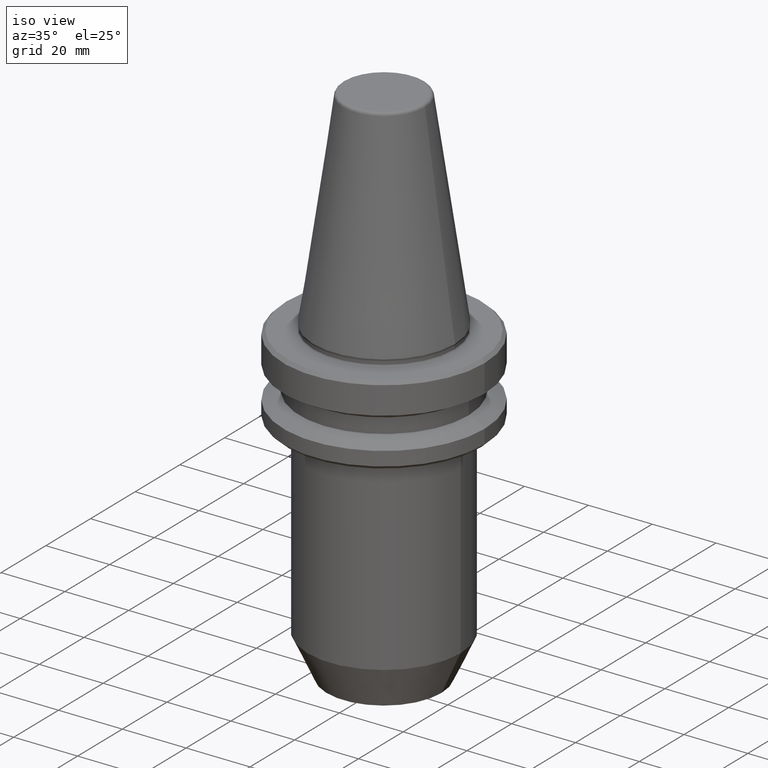
[diagram: clean part render]
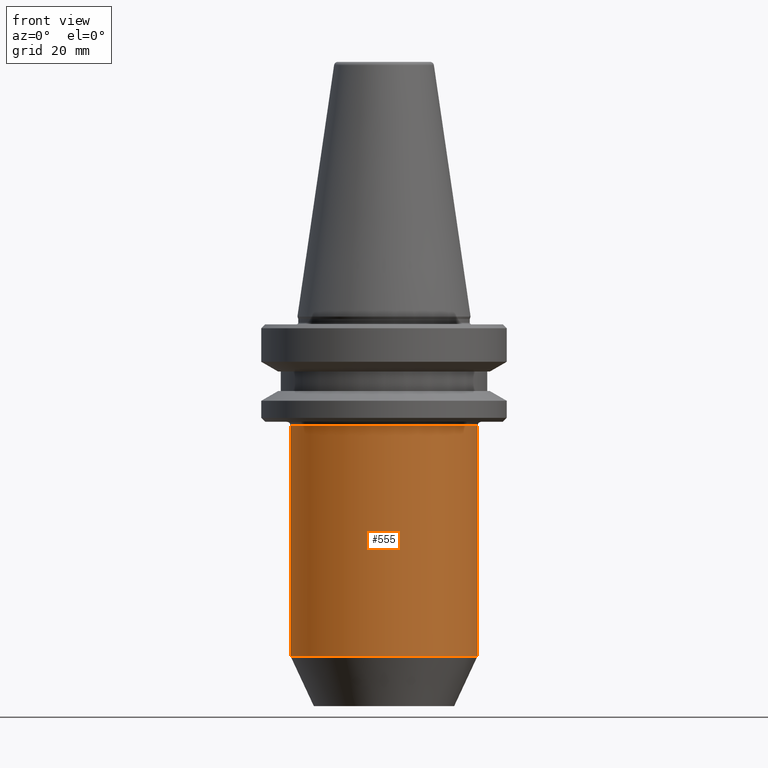
[diagram: tour spotlight — one face highlighted and labeled with its STEP entity id]
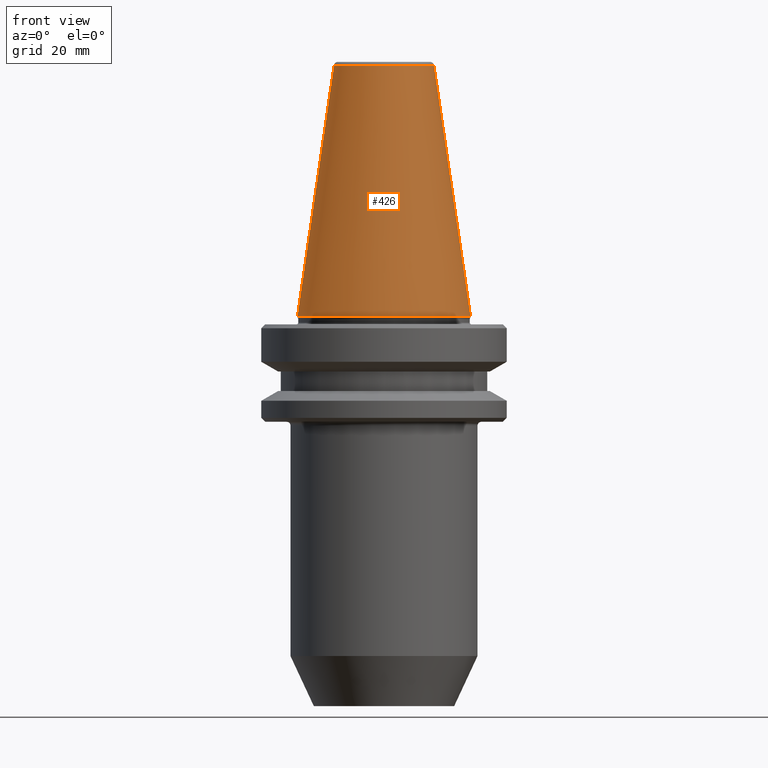
[diagram: tour spotlight — one face highlighted and labeled with its STEP entity id]
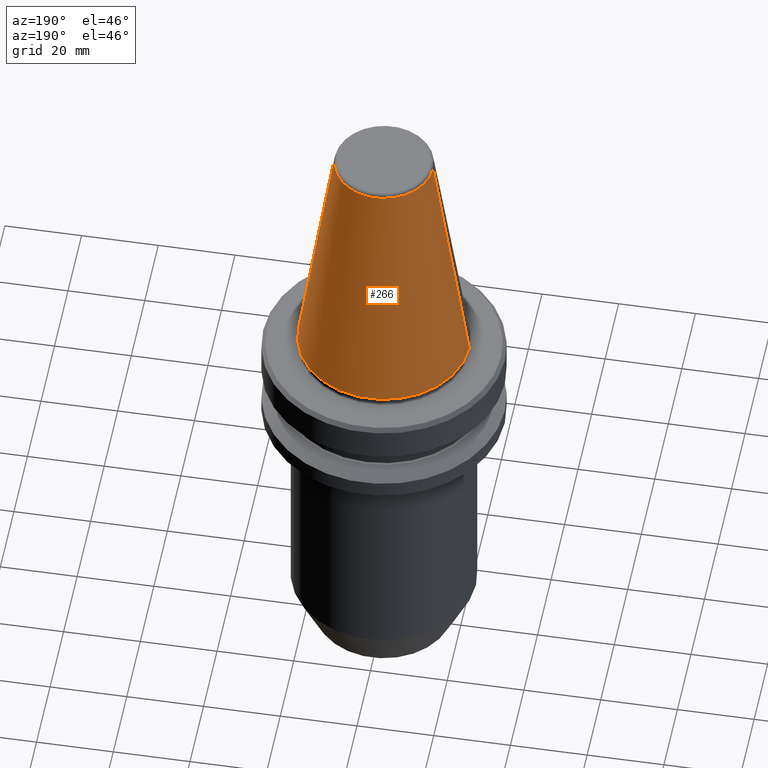
[diagram: tour spotlight — one face highlighted and labeled with its STEP entity id]
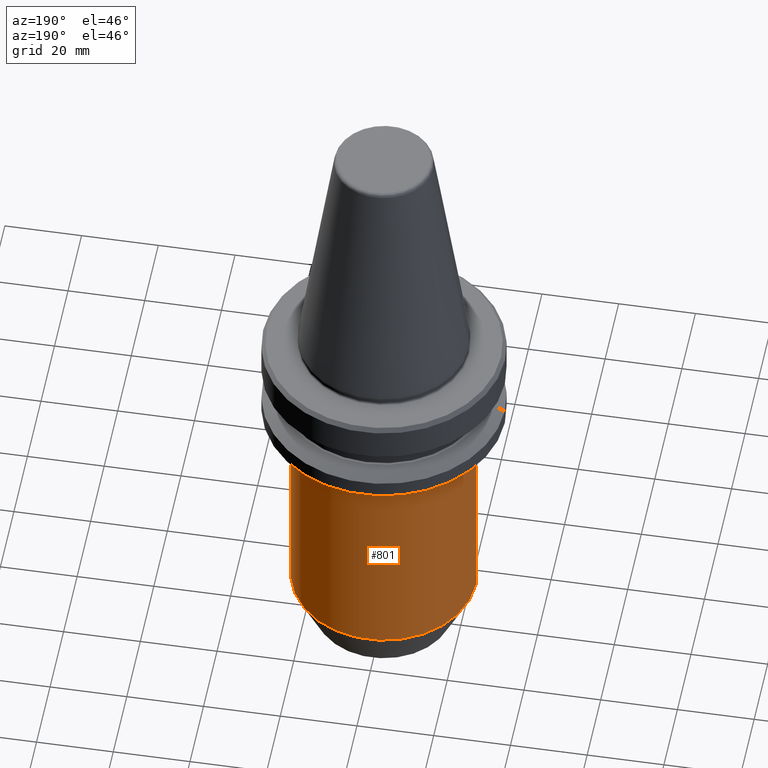
[diagram: tour spotlight — one face highlighted and labeled with its STEP entity id]
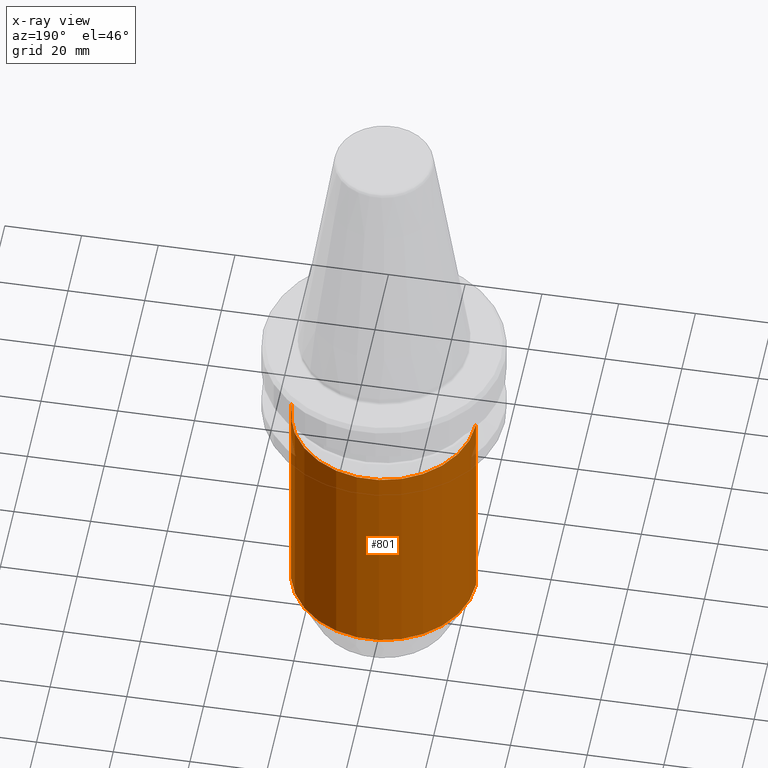
[diagram: x-ray of the same camera — body ghosted, this tour face saturated]
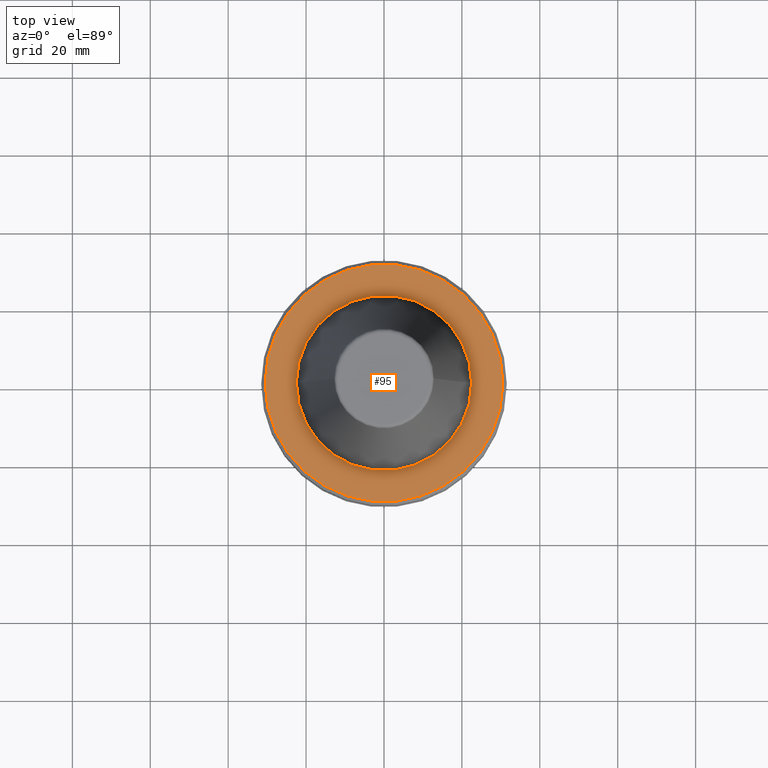
[diagram: tour spotlight — one face highlighted and labeled with its STEP entity id]
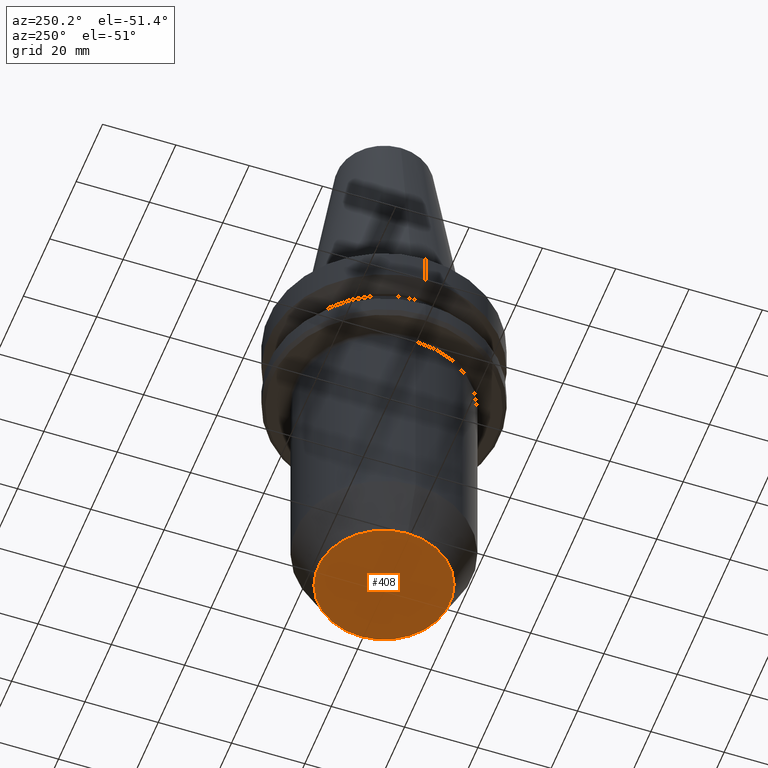
[diagram: tour spotlight — one face highlighted and labeled with its STEP entity id]
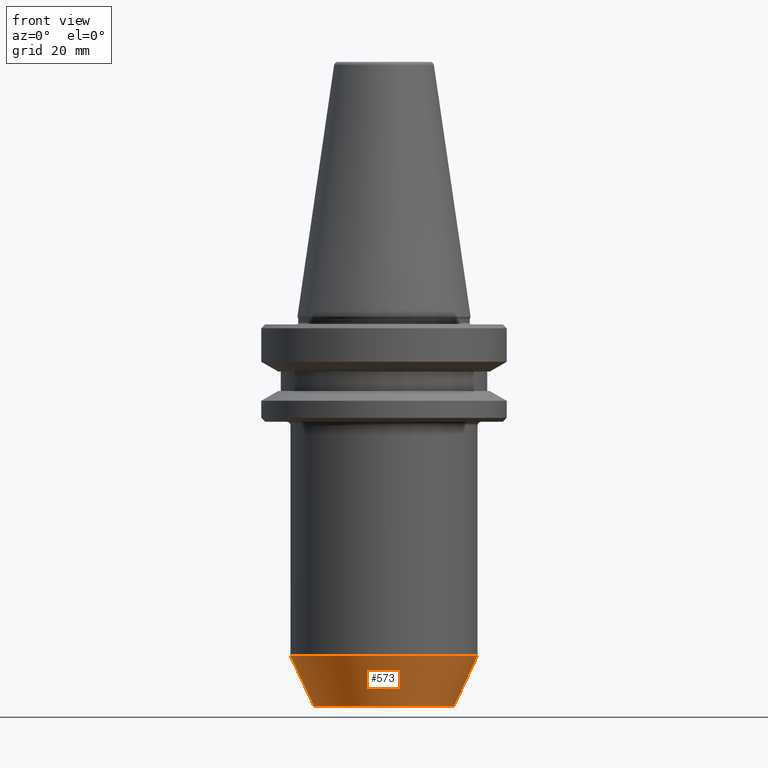
[diagram: tour spotlight — one face highlighted and labeled with its STEP entity id]
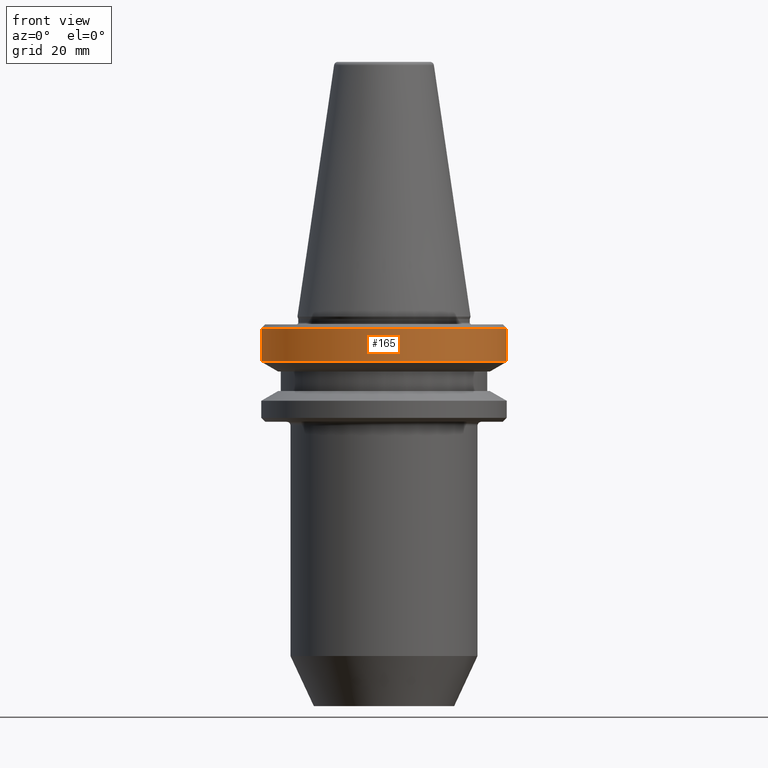
[diagram: tour spotlight — one face highlighted and labeled with its STEP entity id]
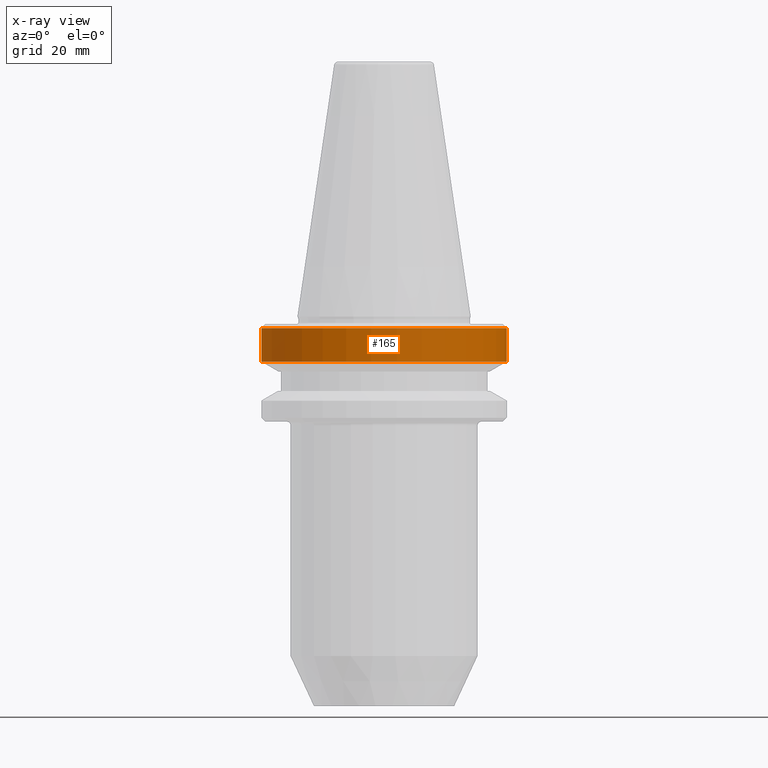
[diagram: x-ray of the same camera — body ghosted, this tour face saturated]
A machine part: a face-by-face anatomy tour. The part has 38 B-rep faces; the first image is the clean iso view, then the 8 largest visible faces are spotlighted one at a time (largest first), each with its STEP entity span.

Face 1 — front view, entity #555. In plain terms, the highlighted cylindrical surface (partial cylindrical patch) has radius 24 mm, axis along (-0, -0, 1).
Definition (entity closure, byte-faithful):
#56 = CIRCLE ( 'NONE', #354, 24.00000000000000000 ) ;
#77 = DIRECTION ( 'NONE',  ( -0.0000000000000000000, -0.0000000000000000000, 1.000000000000000000 ) ) ;
#137 = DIRECTION ( 'NONE',  ( 1.000000000000000000, 0.0000000000000000000, 0.0000000000000000000 ) ) ;
#147 = CARTESIAN_POINT ( 'NONE',  ( 0.0000000000000000000, 0.0000000000000000000, -27.31128678844368800 ) ) ;
#149 = DIRECTION ( 'NONE',  ( 1.000000000000000000, 0.0000000000000000000, 0.0000000000000000000 ) ) ;
#167 = CARTESIAN_POINT ( 'NONE',  ( 0.0000000000000000000, 0.0000000000000000000, -86.44424526528280200 ) ) ;
#168 = CARTESIAN_POINT ( 'NONE',  ( -24.00000000000000000, 2.939152317953647900E-015, -86.44424526528280200 ) ) ;
#171 = DIRECTION ( 'NONE',  ( -0.0000000000000000000, -0.0000000000000000000, 1.000000000000000000 ) ) ;
#194 = DIRECTION ( 'NONE',  ( -0.0000000000000000000, -0.0000000000000000000, 1.000000000000000000 ) ) ;
#213 = EDGE_CURVE ( 'NONE', #914, #503, #848, .T. ) ;
#229 = LINE ( 'NONE', #404, #1044 ) ;
#262 = AXIS2_PLACEMENT_3D ( 'NONE', #584, #1026, #149 ) ;
#296 = ORIENTED_EDGE ( 'NONE', *, *, #213, .F. ) ;
#332 = DIRECTION ( 'NONE',  ( -0.0000000000000000000, -0.0000000000000000000, 1.000000000000000000 ) ) ;
#334 = CARTESIAN_POINT ( 'NONE',  ( 24.00000000000000000, 0.0000000000000000000, 82.74845858742440900 ) ) ;
#354 = AXIS2_PLACEMENT_3D ( 'NONE', #167, #77, #137 ) ;
#357 = CARTESIAN_POINT ( 'NONE',  ( 24.00000000000000000, 0.0000000000000000000, -86.44424526528280200 ) ) ;
#392 = FACE_OUTER_BOUND ( 'NONE', #867, .T. ) ;
#404 = CARTESIAN_POINT ( 'NONE',  ( -24.00000000000000000, 2.939152317953647900E-015, 82.74845858742440900 ) ) ;
#407 = AXIS2_PLACEMENT_3D ( 'NONE', #147, #332, #415 ) ;
#415 = DIRECTION ( 'NONE',  ( 1.000000000000000000, 0.0000000000000000000, 0.0000000000000000000 ) ) ;
#456 = EDGE_CURVE ( 'NONE', #743, #950, #56, .T. ) ;
#482 = VECTOR ( 'NONE', #194, 1000.000000000000000 ) ;
#503 = VERTEX_POINT ( 'NONE', #913 ) ;
#511 = ORIENTED_EDGE ( 'NONE', *, *, #1016, .F. ) ;
#555 = ADVANCED_FACE ( 'NONE', ( #392 ), #753, .T. ) ;
#584 = CARTESIAN_POINT ( 'NONE',  ( 0.0000000000000000000, 0.0000000000000000000, 82.74845858742440900 ) ) ;
#608 = ORIENTED_EDGE ( 'NONE', *, *, #655, .T. ) ;
#655 = EDGE_CURVE ( 'NONE', #950, #503, #901, .T. ) ;
#743 = VERTEX_POINT ( 'NONE', #168 ) ;
#753 = CYLINDRICAL_SURFACE ( 'NONE', #262, 24.00000000000000000 ) ;
#848 = CIRCLE ( 'NONE', #407, 24.00000000000000000 ) ;
#867 = EDGE_LOOP ( 'NONE', ( #511, #999, #608, #296 ) ) ;
#901 = LINE ( 'NONE', #334, #482 ) ;
#913 = CARTESIAN_POINT ( 'NONE',  ( 24.00000000000000000, 0.0000000000000000000, -27.31128678844368800 ) ) ;
#914 = VERTEX_POINT ( 'NONE', #1027 ) ;
#950 = VERTEX_POINT ( 'NONE', #357 ) ;
#999 = ORIENTED_EDGE ( 'NONE', *, *, #456, .T. ) ;
#1016 = EDGE_CURVE ( 'NONE', #743, #914, #229, .T. ) ;
#1026 = DIRECTION ( 'NONE',  ( -0.0000000000000000000, -0.0000000000000000000, 1.000000000000000000 ) ) ;
#1027 = CARTESIAN_POINT ( 'NONE',  ( -24.00000000000000000, 2.939152317953647900E-015, -27.31128678844368800 ) ) ;
#1044 = VECTOR ( 'NONE', #171, 1000.000000000000000 ) ;

Face 2 — front view, entity #426. In plain terms, the highlighted conical surface has half-angle 8.297 deg.
Definition (entity closure, byte-faithful):
#96 = CARTESIAN_POINT ( 'NONE',  ( 22.22499999999971700, 0.0000000000000000000, 0.6887132116596417200 ) ) ;
#156 = AXIS2_PLACEMENT_3D ( 'NONE', #685, #479, #302 ) ;
#170 = CIRCLE ( 'NONE', #156, 12.81220206925715000 ) ;
#234 = CARTESIAN_POINT ( 'NONE',  ( 0.0000000000000000000, 0.0000000000000000000, 0.6887132116596417200 ) ) ;
#263 = AXIS2_PLACEMENT_3D ( 'NONE', #234, #598, #982 ) ;
#278 = CONICAL_SURFACE ( 'NONE', #317, 22.22499999999971700, 0.1448138077623186700 ) ;
#294 = ORIENTED_EDGE ( 'NONE', *, *, #556, .T. ) ;
#302 = DIRECTION ( 'NONE',  ( 1.000000000000000000, 0.0000000000000000000, 0.0000000000000000000 ) ) ;
#317 = AXIS2_PLACEMENT_3D ( 'NONE', #558, #1015, #746 ) ;
#326 = LINE ( 'NONE', #703, #715 ) ;
#327 = EDGE_CURVE ( 'NONE', #846, #1025, #794, .T. ) ;
#340 = CARTESIAN_POINT ( 'NONE',  ( -12.81220206925713600, 1.569042225414484800E-015, 65.23302140054848100 ) ) ;
#425 = ORIENTED_EDGE ( 'NONE', *, *, #327, .F. ) ;
#426 = ADVANCED_FACE ( 'NONE', ( #522 ), #278, .T. ) ;
#479 = DIRECTION ( 'NONE',  ( -0.0000000000000000000, -0.0000000000000000000, 1.000000000000000000 ) ) ;
#513 = EDGE_LOOP ( 'NONE', ( #425, #657, #828, #294 ) ) ;
#522 = FACE_OUTER_BOUND ( 'NONE', #513, .T. ) ;
#556 = EDGE_CURVE ( 'NONE', #857, #1025, #963, .T. ) ;
#558 = CARTESIAN_POINT ( 'NONE',  ( 0.0000000000000000000, 0.0000000000000000000, 0.6887132116596417200 ) ) ;
#565 = DIRECTION ( 'NONE',  ( -0.1443081888881784800, 0.0000000000000000000, -0.9895327920891828800 ) ) ;
#598 = DIRECTION ( 'NONE',  ( -0.0000000000000000000, -0.0000000000000000000, 1.000000000000000000 ) ) ;
#657 = ORIENTED_EDGE ( 'NONE', *, *, #752, .F. ) ;
#685 = CARTESIAN_POINT ( 'NONE',  ( 0.0000000000000000000, 0.0000000000000000000, 65.23302140054848100 ) ) ;
#703 = CARTESIAN_POINT ( 'NONE',  ( -22.22499999999971700, 0.0000000000000000000, 0.6887132116596417200 ) ) ;
#715 = VECTOR ( 'NONE', #565, 999.9999999999998900 ) ;
#746 = DIRECTION ( 'NONE',  ( -1.000000000000000000, 0.0000000000000000000, 0.0000000000000000000 ) ) ;
#750 = CARTESIAN_POINT ( 'NONE',  ( -22.22499999999971700, 2.721777511104957700E-015, 0.6887132116596417200 ) ) ;
#752 = EDGE_CURVE ( 'NONE', #912, #846, #170, .T. ) ;
#794 = LINE ( 'NONE', #1038, #995 ) ;
#828 = ORIENTED_EDGE ( 'NONE', *, *, #878, .T. ) ;
#846 = VERTEX_POINT ( 'NONE', #998 ) ;
#857 = VERTEX_POINT ( 'NONE', #750 ) ;
#878 = EDGE_CURVE ( 'NONE', #912, #857, #326, .T. ) ;
#912 = VERTEX_POINT ( 'NONE', #340 ) ;
#963 = CIRCLE ( 'NONE', #263, 22.22499999999971700 ) ;
#974 = DIRECTION ( 'NONE',  ( 0.1443081888881784800, 1.767265616126594100E-017, -0.9895327920891828800 ) ) ;
#982 = DIRECTION ( 'NONE',  ( 1.000000000000000000, 0.0000000000000000000, 0.0000000000000000000 ) ) ;
#995 = VECTOR ( 'NONE', #974, 999.9999999999998900 ) ;
#998 = CARTESIAN_POINT ( 'NONE',  ( 12.81220206925713600, 0.0000000000000000000, 65.23302140054848100 ) ) ;
#1015 = DIRECTION ( 'NONE',  ( 0.0000000000000000000, 0.0000000000000000000, -1.000000000000000000 ) ) ;
#1025 = VERTEX_POINT ( 'NONE', #96 ) ;
#1038 = CARTESIAN_POINT ( 'NONE',  ( 22.22499999999971700, 2.721777511104957700E-015, 0.6887132116596417200 ) ) ;

Face 3 — auxiliary view, entity #266. In plain terms, the highlighted conical surface has half-angle 8.297 deg.
Definition (entity closure, byte-faithful):
#90 = DIRECTION ( 'NONE',  ( 1.000000000000000000, 0.0000000000000000000, 0.0000000000000000000 ) ) ;
#93 = ORIENTED_EDGE ( 'NONE', *, *, #564, .T. ) ;
#96 = CARTESIAN_POINT ( 'NONE',  ( 22.22499999999971700, 0.0000000000000000000, 0.6887132116596417200 ) ) ;
#172 = CONICAL_SURFACE ( 'NONE', #379, 22.22499999999971700, 0.1448138077623186700 ) ;
#192 = DIRECTION ( 'NONE',  ( -0.0000000000000000000, -0.0000000000000000000, 1.000000000000000000 ) ) ;
#209 = ORIENTED_EDGE ( 'NONE', *, *, #878, .F. ) ;
#247 = DIRECTION ( 'NONE',  ( 0.0000000000000000000, 0.0000000000000000000, -1.000000000000000000 ) ) ;
#266 = ADVANCED_FACE ( 'NONE', ( #644 ), #172, .T. ) ;
#267 = EDGE_LOOP ( 'NONE', ( #363, #361, #93, #209 ) ) ;
#277 = AXIS2_PLACEMENT_3D ( 'NONE', #572, #884, #643 ) ;
#290 = AXIS2_PLACEMENT_3D ( 'NONE', #541, #192, #90 ) ;
#326 = LINE ( 'NONE', #703, #715 ) ;
#327 = EDGE_CURVE ( 'NONE', #846, #1025, #794, .T. ) ;
#340 = CARTESIAN_POINT ( 'NONE',  ( -12.81220206925713600, 1.569042225414484800E-015, 65.23302140054848100 ) ) ;
#361 = ORIENTED_EDGE ( 'NONE', *, *, #327, .T. ) ;
#363 = ORIENTED_EDGE ( 'NONE', *, *, #518, .F. ) ;
#379 = AXIS2_PLACEMENT_3D ( 'NONE', #953, #247, #954 ) ;
#518 = EDGE_CURVE ( 'NONE', #846, #912, #803, .T. ) ;
#541 = CARTESIAN_POINT ( 'NONE',  ( 0.0000000000000000000, 0.0000000000000000000, 65.23302140054848100 ) ) ;
#564 = EDGE_CURVE ( 'NONE', #1025, #857, #780, .T. ) ;
#565 = DIRECTION ( 'NONE',  ( -0.1443081888881784800, 0.0000000000000000000, -0.9895327920891828800 ) ) ;
#572 = CARTESIAN_POINT ( 'NONE',  ( 0.0000000000000000000, 0.0000000000000000000, 0.6887132116596417200 ) ) ;
#643 = DIRECTION ( 'NONE',  ( 1.000000000000000000, 0.0000000000000000000, 0.0000000000000000000 ) ) ;
#644 = FACE_OUTER_BOUND ( 'NONE', #267, .T. ) ;
#703 = CARTESIAN_POINT ( 'NONE',  ( -22.22499999999971700, 0.0000000000000000000, 0.6887132116596417200 ) ) ;
#715 = VECTOR ( 'NONE', #565, 999.9999999999998900 ) ;
#750 = CARTESIAN_POINT ( 'NONE',  ( -22.22499999999971700, 2.721777511104957700E-015, 0.6887132116596417200 ) ) ;
#780 = CIRCLE ( 'NONE', #277, 22.22499999999971700 ) ;
#794 = LINE ( 'NONE', #1038, #995 ) ;
#803 = CIRCLE ( 'NONE', #290, 12.81220206925715000 ) ;
#846 = VERTEX_POINT ( 'NONE', #998 ) ;
#857 = VERTEX_POINT ( 'NONE', #750 ) ;
#878 = EDGE_CURVE ( 'NONE', #912, #857, #326, .T. ) ;
#884 = DIRECTION ( 'NONE',  ( -0.0000000000000000000, -0.0000000000000000000, 1.000000000000000000 ) ) ;
#912 = VERTEX_POINT ( 'NONE', #340 ) ;
#953 = CARTESIAN_POINT ( 'NONE',  ( 0.0000000000000000000, 0.0000000000000000000, 0.6887132116596417200 ) ) ;
#954 = DIRECTION ( 'NONE',  ( -1.000000000000000000, 0.0000000000000000000, 0.0000000000000000000 ) ) ;
#974 = DIRECTION ( 'NONE',  ( 0.1443081888881784800, 1.767265616126594100E-017, -0.9895327920891828800 ) ) ;
#995 = VECTOR ( 'NONE', #974, 999.9999999999998900 ) ;
#998 = CARTESIAN_POINT ( 'NONE',  ( 12.81220206925713600, 0.0000000000000000000, 65.23302140054848100 ) ) ;
#1025 = VERTEX_POINT ( 'NONE', #96 ) ;
#1038 = CARTESIAN_POINT ( 'NONE',  ( 22.22499999999971700, 2.721777511104957700E-015, 0.6887132116596417200 ) ) ;

Face 4 — auxiliary view, entity #801. An x-ray twin of the same camera follows (body ghosted, this face saturated) — the face is partly hidden behind the body. In plain terms, the highlighted cylindrical surface (partial cylindrical patch) has radius 24 mm, axis along (-0, -0, 1).
Definition (entity closure, byte-faithful):
#7 = CYLINDRICAL_SURFACE ( 'NONE', #132, 24.00000000000000000 ) ;
#14 = ORIENTED_EDGE ( 'NONE', *, *, #604, .F. ) ;
#38 = FACE_OUTER_BOUND ( 'NONE', #182, .T. ) ;
#132 = AXIS2_PLACEMENT_3D ( 'NONE', #637, #899, #624 ) ;
#168 = CARTESIAN_POINT ( 'NONE',  ( -24.00000000000000000, 2.939152317953647900E-015, -86.44424526528280200 ) ) ;
#171 = DIRECTION ( 'NONE',  ( -0.0000000000000000000, -0.0000000000000000000, 1.000000000000000000 ) ) ;
#182 = EDGE_LOOP ( 'NONE', ( #400, #303, #14, #891 ) ) ;
#194 = DIRECTION ( 'NONE',  ( -0.0000000000000000000, -0.0000000000000000000, 1.000000000000000000 ) ) ;
#199 = DIRECTION ( 'NONE',  ( 1.000000000000000000, 0.0000000000000000000, 0.0000000000000000000 ) ) ;
#227 = DIRECTION ( 'NONE',  ( 1.000000000000000000, 0.0000000000000000000, 0.0000000000000000000 ) ) ;
#229 = LINE ( 'NONE', #404, #1044 ) ;
#235 = AXIS2_PLACEMENT_3D ( 'NONE', #898, #818, #227 ) ;
#303 = ORIENTED_EDGE ( 'NONE', *, *, #1016, .T. ) ;
#334 = CARTESIAN_POINT ( 'NONE',  ( 24.00000000000000000, 0.0000000000000000000, 82.74845858742440900 ) ) ;
#356 = CIRCLE ( 'NONE', #420, 24.00000000000000000 ) ;
#357 = CARTESIAN_POINT ( 'NONE',  ( 24.00000000000000000, 0.0000000000000000000, -86.44424526528280200 ) ) ;
#358 = EDGE_CURVE ( 'NONE', #950, #743, #356, .T. ) ;
#400 = ORIENTED_EDGE ( 'NONE', *, *, #358, .T. ) ;
#404 = CARTESIAN_POINT ( 'NONE',  ( -24.00000000000000000, 2.939152317953647900E-015, 82.74845858742440900 ) ) ;
#420 = AXIS2_PLACEMENT_3D ( 'NONE', #700, #1001, #199 ) ;
#482 = VECTOR ( 'NONE', #194, 1000.000000000000000 ) ;
#503 = VERTEX_POINT ( 'NONE', #913 ) ;
#560 = CIRCLE ( 'NONE', #235, 24.00000000000000000 ) ;
#604 = EDGE_CURVE ( 'NONE', #503, #914, #560, .T. ) ;
#624 = DIRECTION ( 'NONE',  ( 1.000000000000000000, 0.0000000000000000000, 0.0000000000000000000 ) ) ;
#637 = CARTESIAN_POINT ( 'NONE',  ( 0.0000000000000000000, 0.0000000000000000000, 82.74845858742440900 ) ) ;
#655 = EDGE_CURVE ( 'NONE', #950, #503, #901, .T. ) ;
#700 = CARTESIAN_POINT ( 'NONE',  ( 0.0000000000000000000, 0.0000000000000000000, -86.44424526528280200 ) ) ;
#743 = VERTEX_POINT ( 'NONE', #168 ) ;
#801 = ADVANCED_FACE ( 'NONE', ( #38 ), #7, .T. ) ;
#818 = DIRECTION ( 'NONE',  ( -0.0000000000000000000, -0.0000000000000000000, 1.000000000000000000 ) ) ;
#891 = ORIENTED_EDGE ( 'NONE', *, *, #655, .F. ) ;
#898 = CARTESIAN_POINT ( 'NONE',  ( 0.0000000000000000000, 0.0000000000000000000, -27.31128678844368800 ) ) ;
#899 = DIRECTION ( 'NONE',  ( -0.0000000000000000000, -0.0000000000000000000, 1.000000000000000000 ) ) ;
#901 = LINE ( 'NONE', #334, #482 ) ;
#913 = CARTESIAN_POINT ( 'NONE',  ( 24.00000000000000000, 0.0000000000000000000, -27.31128678844368800 ) ) ;
#914 = VERTEX_POINT ( 'NONE', #1027 ) ;
#950 = VERTEX_POINT ( 'NONE', #357 ) ;
#1001 = DIRECTION ( 'NONE',  ( -0.0000000000000000000, -0.0000000000000000000, 1.000000000000000000 ) ) ;
#1016 = EDGE_CURVE ( 'NONE', #743, #914, #229, .T. ) ;
#1027 = CARTESIAN_POINT ( 'NONE',  ( -24.00000000000000000, 2.939152317953647900E-015, -27.31128678844368800 ) ) ;
#1044 = VECTOR ( 'NONE', #171, 1000.000000000000000 ) ;

Face 5 — top view, entity #95. In plain terms, the highlighted planar face has unit normal (0, 0, -1).
Definition (entity closure, byte-faithful):
#2 = DIRECTION ( 'NONE',  ( 1.000000000000000000, 0.0000000000000000000, 0.0000000000000000000 ) ) ;
#44 = CIRCLE ( 'NONE', #228, 22.49999999999985400 ) ;
#52 = DIRECTION ( 'NONE',  ( -0.0000000000000000000, -0.0000000000000000000, 1.000000000000000000 ) ) ;
#95 = ADVANCED_FACE ( 'NONE', ( #930, #484 ), #388, .F. ) ;
#176 = AXIS2_PLACEMENT_3D ( 'NONE', #863, #855, #2 ) ;
#185 = VERTEX_POINT ( 'NONE', #733 ) ;
#211 = CARTESIAN_POINT ( 'NONE',  ( -30.49999999999986100, 0.0000000000000000000, -1.311286788340082500 ) ) ;
#228 = AXIS2_PLACEMENT_3D ( 'NONE', #325, #741, #756 ) ;
#258 = CIRCLE ( 'NONE', #176, 22.49999999999985400 ) ;
#325 = CARTESIAN_POINT ( 'NONE',  ( 0.0000000000000000000, 0.0000000000000000000, -1.311286788340082500 ) ) ;
#329 = EDGE_CURVE ( 'NONE', #633, #807, #822, .T. ) ;
#352 = EDGE_CURVE ( 'NONE', #807, #633, #767, .T. ) ;
#366 = VERTEX_POINT ( 'NONE', #409 ) ;
#388 = PLANE ( 'NONE',  #1014 ) ;
#405 = AXIS2_PLACEMENT_3D ( 'NONE', #939, #52, #730 ) ;
#409 = CARTESIAN_POINT ( 'NONE',  ( -22.49999999999985400, 2.755455298081526600E-015, -1.311286788340096300 ) ) ;
#416 = AXIS2_PLACEMENT_3D ( 'NONE', #764, #1021, #916 ) ;
#436 = EDGE_LOOP ( 'NONE', ( #449, #883 ) ) ;
#449 = ORIENTED_EDGE ( 'NONE', *, *, #352, .T. ) ;
#484 = FACE_OUTER_BOUND ( 'NONE', #436, .T. ) ;
#509 = DIRECTION ( 'NONE',  ( -1.000000000000000000, 0.0000000000000000000, -0.0000000000000000000 ) ) ;
#536 = EDGE_LOOP ( 'NONE', ( #795, #847 ) ) ;
#633 = VERTEX_POINT ( 'NONE', #875 ) ;
#641 = EDGE_CURVE ( 'NONE', #366, #185, #44, .T. ) ;
#660 = CARTESIAN_POINT ( 'NONE',  ( 0.0000000000000000000, 30.49999999999986100, -1.311286788340082500 ) ) ;
#705 = EDGE_CURVE ( 'NONE', #185, #366, #258, .T. ) ;
#713 = DIRECTION ( 'NONE',  ( 0.0000000000000000000, 0.0000000000000000000, -1.000000000000000000 ) ) ;
#730 = DIRECTION ( 'NONE',  ( 1.000000000000000000, 0.0000000000000000000, 0.0000000000000000000 ) ) ;
#733 = CARTESIAN_POINT ( 'NONE',  ( 22.49999999999985400, 0.0000000000000000000, -1.311286788340096300 ) ) ;
#741 = DIRECTION ( 'NONE',  ( -0.0000000000000000000, -0.0000000000000000000, 1.000000000000000000 ) ) ;
#756 = DIRECTION ( 'NONE',  ( 1.000000000000000000, 0.0000000000000000000, 0.0000000000000000000 ) ) ;
#764 = CARTESIAN_POINT ( 'NONE',  ( 0.0000000000000000000, 0.0000000000000000000, -1.311286788340082500 ) ) ;
#767 = CIRCLE ( 'NONE', #416, 30.49999999999986100 ) ;
#795 = ORIENTED_EDGE ( 'NONE', *, *, #705, .F. ) ;
#807 = VERTEX_POINT ( 'NONE', #211 ) ;
#822 = CIRCLE ( 'NONE', #405, 30.49999999999986100 ) ;
#847 = ORIENTED_EDGE ( 'NONE', *, *, #641, .F. ) ;
#855 = DIRECTION ( 'NONE',  ( -0.0000000000000000000, -0.0000000000000000000, 1.000000000000000000 ) ) ;
#863 = CARTESIAN_POINT ( 'NONE',  ( 0.0000000000000000000, 0.0000000000000000000, -1.311286788340082500 ) ) ;
#875 = CARTESIAN_POINT ( 'NONE',  ( 30.49999999999986100, 3.796405077356777800E-015, -1.311286788340082500 ) ) ;
#883 = ORIENTED_EDGE ( 'NONE', *, *, #329, .T. ) ;
#916 = DIRECTION ( 'NONE',  ( 1.000000000000000000, 0.0000000000000000000, 0.0000000000000000000 ) ) ;
#930 = FACE_BOUND ( 'NONE', #536, .T. ) ;
#939 = CARTESIAN_POINT ( 'NONE',  ( 0.0000000000000000000, 0.0000000000000000000, -1.311286788340082500 ) ) ;
#1014 = AXIS2_PLACEMENT_3D ( 'NONE', #660, #713, #509 ) ;
#1021 = DIRECTION ( 'NONE',  ( -0.0000000000000000000, -0.0000000000000000000, 1.000000000000000000 ) ) ;

Face 6 — auxiliary view, entity #408. In plain terms, the highlighted planar face has unit normal (0, -0, 1).
Definition (entity closure, byte-faithful):
#37 = ORIENTED_EDGE ( 'NONE', *, *, #289, .F. ) ;
#42 = CARTESIAN_POINT ( 'NONE',  ( 0.0000000000000000000, 0.0000000000000000000, -99.31128678834039600 ) ) ;
#48 = CARTESIAN_POINT ( 'NONE',  ( 0.0000000000000000000, 18.00000000000000000, -99.31128678834039600 ) ) ;
#63 = CIRCLE ( 'NONE', #141, 18.00000000000000000 ) ;
#85 = CARTESIAN_POINT ( 'NONE',  ( -18.00000000000000000, 2.571758278209441300E-015, -99.31128678834039600 ) ) ;
#140 = PLANE ( 'NONE',  #315 ) ;
#141 = AXIS2_PLACEMENT_3D ( 'NONE', #42, #300, #561 ) ;
#184 = EDGE_LOOP ( 'NONE', ( #399, #37 ) ) ;
#198 = CIRCLE ( 'NONE', #533, 18.00000000000000000 ) ;
#217 = DIRECTION ( 'NONE',  ( 0.0000000000000000000, -0.0000000000000000000, 1.000000000000000000 ) ) ;
#289 = EDGE_CURVE ( 'NONE', #994, #835, #198, .T. ) ;
#300 = DIRECTION ( 'NONE',  ( -0.0000000000000000000, -0.0000000000000000000, 1.000000000000000000 ) ) ;
#315 = AXIS2_PLACEMENT_3D ( 'NONE', #48, #217, #851 ) ;
#399 = ORIENTED_EDGE ( 'NONE', *, *, #796, .F. ) ;
#408 = ADVANCED_FACE ( 'NONE', ( #952 ), #140, .F. ) ;
#466 = DIRECTION ( 'NONE',  ( -0.0000000000000000000, -0.0000000000000000000, 1.000000000000000000 ) ) ;
#533 = AXIS2_PLACEMENT_3D ( 'NONE', #791, #466, #1049 ) ;
#554 = CARTESIAN_POINT ( 'NONE',  ( 18.00000000000000000, 0.0000000000000000000, -99.31128678834039600 ) ) ;
#561 = DIRECTION ( 'NONE',  ( 1.000000000000000000, 0.0000000000000000000, 0.0000000000000000000 ) ) ;
#791 = CARTESIAN_POINT ( 'NONE',  ( 0.0000000000000000000, 0.0000000000000000000, -99.31128678834039600 ) ) ;
#796 = EDGE_CURVE ( 'NONE', #835, #994, #63, .T. ) ;
#835 = VERTEX_POINT ( 'NONE', #554 ) ;
#851 = DIRECTION ( 'NONE',  ( 1.000000000000000000, 0.0000000000000000000, 0.0000000000000000000 ) ) ;
#952 = FACE_OUTER_BOUND ( 'NONE', #184, .T. ) ;
#994 = VERTEX_POINT ( 'NONE', #85 ) ;
#1049 = DIRECTION ( 'NONE',  ( 1.000000000000000000, 0.0000000000000000000, 0.0000000000000000000 ) ) ;

Face 7 — front view, entity #573. In plain terms, the highlighted conical surface has half-angle 25 deg.
Definition (entity closure, byte-faithful):
#56 = CIRCLE ( 'NONE', #354, 24.00000000000000000 ) ;
#77 = DIRECTION ( 'NONE',  ( -0.0000000000000000000, -0.0000000000000000000, 1.000000000000000000 ) ) ;
#85 = CARTESIAN_POINT ( 'NONE',  ( -18.00000000000000000, 2.571758278209441300E-015, -99.31128678834039600 ) ) ;
#94 = LINE ( 'NONE', #761, #924 ) ;
#137 = DIRECTION ( 'NONE',  ( 1.000000000000000000, 0.0000000000000000000, 0.0000000000000000000 ) ) ;
#159 = EDGE_LOOP ( 'NONE', ( #562, #480, #652, #1033 ) ) ;
#167 = CARTESIAN_POINT ( 'NONE',  ( 0.0000000000000000000, 0.0000000000000000000, -86.44424526528280200 ) ) ;
#168 = CARTESIAN_POINT ( 'NONE',  ( -24.00000000000000000, 2.939152317953647900E-015, -86.44424526528280200 ) ) ;
#198 = CIRCLE ( 'NONE', #533, 18.00000000000000000 ) ;
#231 = DIRECTION ( 'NONE',  ( -0.4226182617406930600, 5.175581015019580500E-017, 0.9063077870366529300 ) ) ;
#250 = DIRECTION ( 'NONE',  ( 1.000000000000000000, 0.0000000000000000000, 0.0000000000000000000 ) ) ;
#253 = AXIS2_PLACEMENT_3D ( 'NONE', #368, #502, #250 ) ;
#268 = CARTESIAN_POINT ( 'NONE',  ( 18.00000000000000000, 0.0000000000000000000, -99.31128678834039600 ) ) ;
#289 = EDGE_CURVE ( 'NONE', #994, #835, #198, .T. ) ;
#312 = VECTOR ( 'NONE', #386, 1000.000000000000000 ) ;
#320 = CONICAL_SURFACE ( 'NONE', #253, 18.00000000000000000, 0.4363323129985753300 ) ;
#354 = AXIS2_PLACEMENT_3D ( 'NONE', #167, #77, #137 ) ;
#357 = CARTESIAN_POINT ( 'NONE',  ( 24.00000000000000000, 0.0000000000000000000, -86.44424526528280200 ) ) ;
#368 = CARTESIAN_POINT ( 'NONE',  ( 0.0000000000000000000, 0.0000000000000000000, -99.31128678834039600 ) ) ;
#386 = DIRECTION ( 'NONE',  ( 0.4226182617406930600, 0.0000000000000000000, 0.9063077870366529300 ) ) ;
#456 = EDGE_CURVE ( 'NONE', #743, #950, #56, .T. ) ;
#466 = DIRECTION ( 'NONE',  ( -0.0000000000000000000, -0.0000000000000000000, 1.000000000000000000 ) ) ;
#480 = ORIENTED_EDGE ( 'NONE', *, *, #289, .T. ) ;
#502 = DIRECTION ( 'NONE',  ( -0.0000000000000000000, -0.0000000000000000000, 1.000000000000000000 ) ) ;
#533 = AXIS2_PLACEMENT_3D ( 'NONE', #791, #466, #1049 ) ;
#553 = LINE ( 'NONE', #268, #312 ) ;
#554 = CARTESIAN_POINT ( 'NONE',  ( 18.00000000000000000, 0.0000000000000000000, -99.31128678834039600 ) ) ;
#562 = ORIENTED_EDGE ( 'NONE', *, *, #775, .F. ) ;
#573 = ADVANCED_FACE ( 'NONE', ( #983 ), #320, .T. ) ;
#652 = ORIENTED_EDGE ( 'NONE', *, *, #770, .T. ) ;
#743 = VERTEX_POINT ( 'NONE', #168 ) ;
#761 = CARTESIAN_POINT ( 'NONE',  ( -18.00000000000000000, 2.204364238465235400E-015, -99.31128678834039600 ) ) ;
#770 = EDGE_CURVE ( 'NONE', #835, #950, #553, .T. ) ;
#775 = EDGE_CURVE ( 'NONE', #994, #743, #94, .T. ) ;
#791 = CARTESIAN_POINT ( 'NONE',  ( 0.0000000000000000000, 0.0000000000000000000, -99.31128678834039600 ) ) ;
#835 = VERTEX_POINT ( 'NONE', #554 ) ;
#924 = VECTOR ( 'NONE', #231, 1000.000000000000000 ) ;
#950 = VERTEX_POINT ( 'NONE', #357 ) ;
#983 = FACE_OUTER_BOUND ( 'NONE', #159, .T. ) ;
#994 = VERTEX_POINT ( 'NONE', #85 ) ;
#1033 = ORIENTED_EDGE ( 'NONE', *, *, #456, .F. ) ;
#1049 = DIRECTION ( 'NONE',  ( 1.000000000000000000, 0.0000000000000000000, 0.0000000000000000000 ) ) ;

Face 8 — front view, entity #165. An x-ray twin of the same camera follows (body ghosted, this face saturated) — the face is partly hidden behind the body. In plain terms, the highlighted cylindrical surface (partial cylindrical patch) has radius 31.5 mm, axis along (-0, -0, 1).
Definition (entity closure, byte-faithful):
#9 = CARTESIAN_POINT ( 'NONE',  ( 31.49999999999986100, 0.0000000000000000000, -10.91114478202370800 ) ) ;
#19 = CIRCLE ( 'NONE', #66, 31.49999999999986100 ) ;
#25 = LINE ( 'NONE', #664, #673 ) ;
#64 = DIRECTION ( 'NONE',  ( -0.0000000000000000000, -0.0000000000000000000, 1.000000000000000000 ) ) ;
#66 = AXIS2_PLACEMENT_3D ( 'NONE', #519, #740, #823 ) ;
#125 = CARTESIAN_POINT ( 'NONE',  ( -31.49999999999986100, 3.857637417314145300E-015, -2.311286788340083400 ) ) ;
#144 = DIRECTION ( 'NONE',  ( -0.0000000000000000000, -0.0000000000000000000, 1.000000000000000000 ) ) ;
#145 = CIRCLE ( 'NONE', #389, 31.49999999999986100 ) ;
#165 = ADVANCED_FACE ( 'NONE', ( #882 ), #1043, .T. ) ;
#186 = CARTESIAN_POINT ( 'NONE',  ( 31.49999999999986100, 0.0000000000000000000, -2.311286788340083400 ) ) ;
#193 = VERTEX_POINT ( 'NONE', #906 ) ;
#225 = CARTESIAN_POINT ( 'NONE',  ( 0.0000000000000000000, 0.0000000000000000000, 82.74845858742440900 ) ) ;
#260 = ORIENTED_EDGE ( 'NONE', *, *, #458, .T. ) ;
#331 = EDGE_CURVE ( 'NONE', #193, #587, #145, .T. ) ;
#342 = DIRECTION ( 'NONE',  ( -0.0000000000000000000, -0.0000000000000000000, 1.000000000000000000 ) ) ;
#380 = ORIENTED_EDGE ( 'NONE', *, *, #385, .F. ) ;
#385 = EDGE_CURVE ( 'NONE', #193, #926, #720, .T. ) ;
#389 = AXIS2_PLACEMENT_3D ( 'NONE', #599, #342, #496 ) ;
#393 = ORIENTED_EDGE ( 'NONE', *, *, #991, .F. ) ;
#418 = AXIS2_PLACEMENT_3D ( 'NONE', #225, #144, #872 ) ;
#458 = EDGE_CURVE ( 'NONE', #587, #964, #25, .T. ) ;
#475 = EDGE_LOOP ( 'NONE', ( #380, #938, #260, #393 ) ) ;
#496 = DIRECTION ( 'NONE',  ( 1.000000000000000000, 0.0000000000000000000, 0.0000000000000000000 ) ) ;
#519 = CARTESIAN_POINT ( 'NONE',  ( 0.0000000000000000000, 0.0000000000000000000, -2.311286788340083400 ) ) ;
#587 = VERTEX_POINT ( 'NONE', #9 ) ;
#599 = CARTESIAN_POINT ( 'NONE',  ( 0.0000000000000000000, 0.0000000000000000000, -10.91114478202370800 ) ) ;
#634 = DIRECTION ( 'NONE',  ( -0.0000000000000000000, -0.0000000000000000000, 1.000000000000000000 ) ) ;
#664 = CARTESIAN_POINT ( 'NONE',  ( 31.49999999999986100, 0.0000000000000000000, 82.74845858742440900 ) ) ;
#673 = VECTOR ( 'NONE', #64, 1000.000000000000000 ) ;
#720 = LINE ( 'NONE', #903, #936 ) ;
#740 = DIRECTION ( 'NONE',  ( -0.0000000000000000000, -0.0000000000000000000, 1.000000000000000000 ) ) ;
#823 = DIRECTION ( 'NONE',  ( 1.000000000000000000, 0.0000000000000000000, 0.0000000000000000000 ) ) ;
#872 = DIRECTION ( 'NONE',  ( 1.000000000000000000, 0.0000000000000000000, 0.0000000000000000000 ) ) ;
#882 = FACE_OUTER_BOUND ( 'NONE', #475, .T. ) ;
#903 = CARTESIAN_POINT ( 'NONE',  ( -31.49999999999986100, 3.857637417314145300E-015, 82.74845858742440900 ) ) ;
#906 = CARTESIAN_POINT ( 'NONE',  ( -31.49999999999986100, 3.857637417314145300E-015, -10.91114478202370800 ) ) ;
#926 = VERTEX_POINT ( 'NONE', #125 ) ;
#936 = VECTOR ( 'NONE', #634, 1000.000000000000000 ) ;
#938 = ORIENTED_EDGE ( 'NONE', *, *, #331, .T. ) ;
#964 = VERTEX_POINT ( 'NONE', #186 ) ;
#991 = EDGE_CURVE ( 'NONE', #926, #964, #19, .T. ) ;
#1043 = CYLINDRICAL_SURFACE ( 'NONE', #418, 31.49999999999986100 ) ;